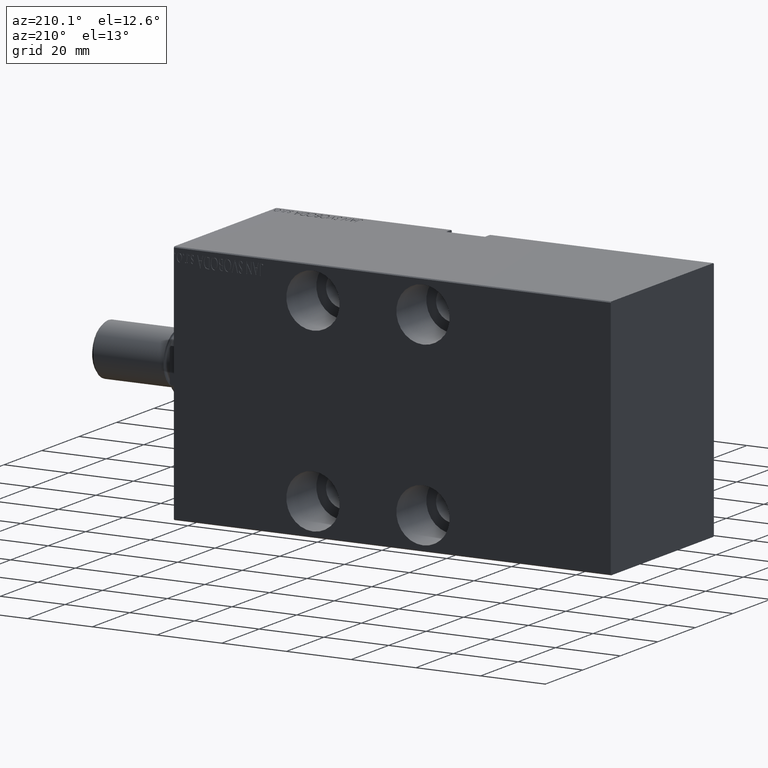
[diagram: clean part render]
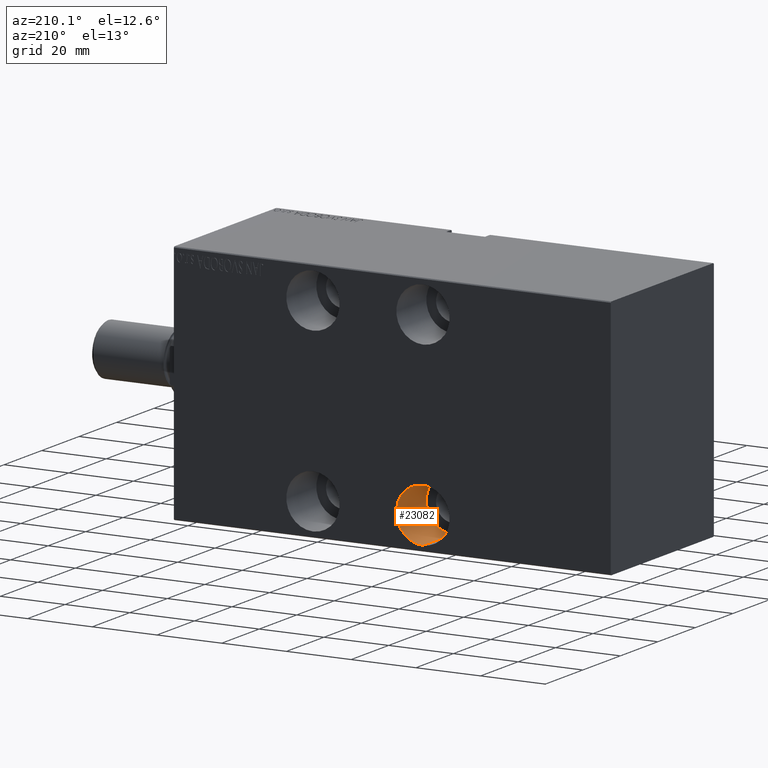
[diagram: same view with one face highlighted and labeled with its STEP entity id]
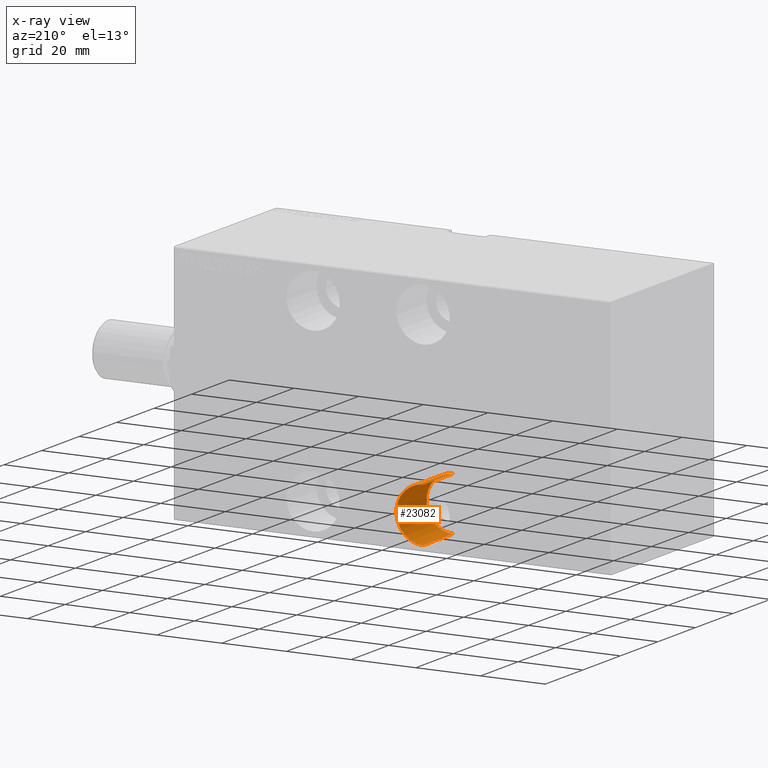
[diagram: x-ray of the same camera — body ghosted, the highlighted face saturated]
A machine part, auxiliary view. The second image highlights one B-rep face of the part: STEP entity #23082.
The next image is the same camera in x-ray: the body ghosted, the highlighted face saturated — about 0% of this face is hidden behind the body in this view.
In plain terms, the highlighted cylindrical surface (edge-blend (fillet) strip) has radius 8.25 mm, axis along (-0, 1, 0).
Its self-contained STEP definition (entity closure, byte-faithful):
#1897 = AXIS2_PLACEMENT_3D ( 'NONE', #23799, #13505, #3678 ) ;
#2244 = VERTEX_POINT ( 'NONE', #15967 ) ;
#3096 = CIRCLE ( 'NONE', #30210, 8.249999999999996447 ) ;
#3457 = LINE ( 'NONE', #23586, #4428 ) ;
#3678 = DIRECTION ( 'NONE',  ( 0.000000000000000000, 0.000000000000000000, -1.000000000000000000 ) ) ;
#4428 = VECTOR ( 'NONE', #17098, 1000.000000000000000 ) ;
#6585 = DIRECTION ( 'NONE',  ( 0.000000000000000000, -1.000000000000000000, 0.000000000000000000 ) ) ;
#7453 = VERTEX_POINT ( 'NONE', #26545 ) ;
#7536 = CARTESIAN_POINT ( 'NONE',  ( 77.00000000000000000, -27.49999999999999645, -19.25000000000000355 ) ) ;
#7941 = EDGE_CURVE ( 'NONE', #36485, #7453, #26470, .T. ) ;
#8147 = DIRECTION ( 'NONE',  ( 0.000000000000000000, -1.000000000000000000, 0.000000000000000000 ) ) ;
#8970 = ORIENTED_EDGE ( 'NONE', *, *, #13589, .F. ) ;
#10095 = AXIS2_PLACEMENT_3D ( 'NONE', #34963, #8147, #24479 ) ;
#13505 = DIRECTION ( 'NONE',  ( -0.000000000000000000, -1.000000000000000000, -0.000000000000000000 ) ) ;
#13589 = EDGE_CURVE ( 'NONE', #2244, #7453, #3457, .T. ) ;
#15967 = CARTESIAN_POINT ( 'NONE',  ( 77.00000000000000000, -11.49999999999999645, -35.75000000000000000 ) ) ;
#17098 = DIRECTION ( 'NONE',  ( -0.000000000000000000, -1.000000000000000000, -0.000000000000000000 ) ) ;
#17281 = EDGE_CURVE ( 'NONE', #40067, #2244, #3096, .T. ) ;
#18527 = ORIENTED_EDGE ( 'NONE', *, *, #7941, .T. ) ;
#20220 = DIRECTION ( 'NONE',  ( 0.000000000000000000, 0.000000000000000000, -1.000000000000000000 ) ) ;
#20629 = CARTESIAN_POINT ( 'NONE',  ( 77.00000000000000000, -11.49999999999999645, -19.25000000000000355 ) ) ;
#21461 = ORIENTED_EDGE ( 'NONE', *, *, #17281, .F. ) ;
#23082 = ADVANCED_FACE ( 'NONE', ( #44122 ), #37197, .F. ) ;
#23586 = CARTESIAN_POINT ( 'NONE',  ( 77.00000000000000000, -11.49999999999999645, -35.75000000000000000 ) ) ;
#23799 = CARTESIAN_POINT ( 'NONE',  ( 77.00000000000000000, -11.49999999999999645, -27.50000000000000000 ) ) ;
#24479 = DIRECTION ( 'NONE',  ( 0.000000000000000000, 0.000000000000000000, -1.000000000000000000 ) ) ;
#25231 = EDGE_LOOP ( 'NONE', ( #21461, #37398, #18527, #8970 ) ) ;
#26470 = CIRCLE ( 'NONE', #10095, 8.249999999999996447 ) ;
#26545 = CARTESIAN_POINT ( 'NONE',  ( 77.00000000000000000, -27.49999999999999645, -35.75000000000000000 ) ) ;
#27343 = LINE ( 'NONE', #40984, #39240 ) ;
#30210 = AXIS2_PLACEMENT_3D ( 'NONE', #40540, #6585, #20220 ) ;
#31688 = EDGE_CURVE ( 'NONE', #40067, #36485, #27343, .T. ) ;
#34919 = DIRECTION ( 'NONE',  ( -0.000000000000000000, -1.000000000000000000, -0.000000000000000000 ) ) ;
#34963 = CARTESIAN_POINT ( 'NONE',  ( 77.00000000000000000, -27.49999999999999645, -27.50000000000000000 ) ) ;
#36485 = VERTEX_POINT ( 'NONE', #7536 ) ;
#37197 = CYLINDRICAL_SURFACE ( 'NONE', #1897, 8.249999999999996447 ) ;
#37398 = ORIENTED_EDGE ( 'NONE', *, *, #31688, .T. ) ;
#39240 = VECTOR ( 'NONE', #34919, 1000.000000000000000 ) ;
#40067 = VERTEX_POINT ( 'NONE', #20629 ) ;
#40540 = CARTESIAN_POINT ( 'NONE',  ( 77.00000000000000000, -11.49999999999999645, -27.50000000000000000 ) ) ;
#40984 = CARTESIAN_POINT ( 'NONE',  ( 77.00000000000000000, -11.49999999999999645, -19.25000000000000355 ) ) ;
#44122 = FACE_OUTER_BOUND ( 'NONE', #25231, .T. ) ;